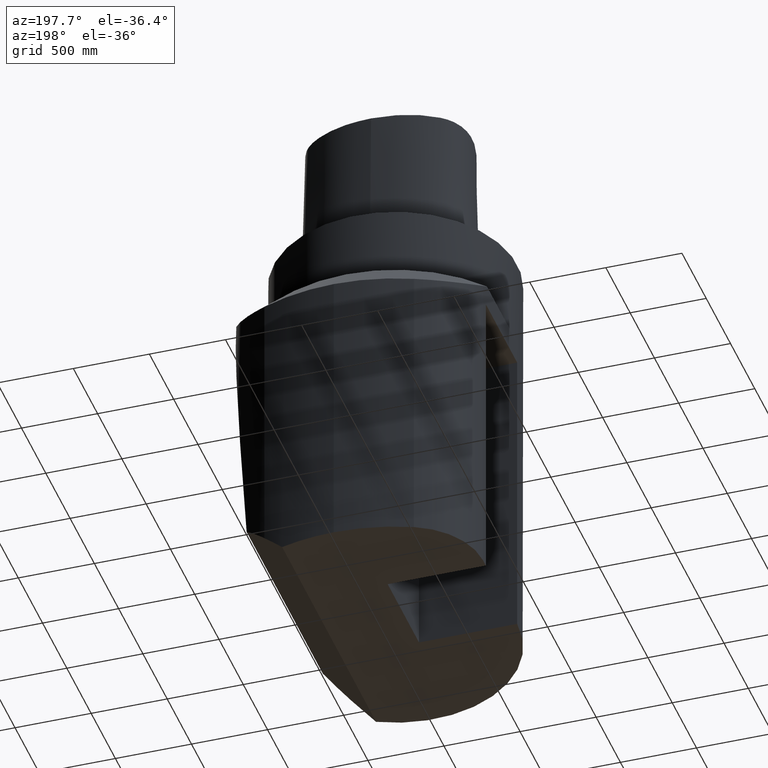
[diagram: clean part render]
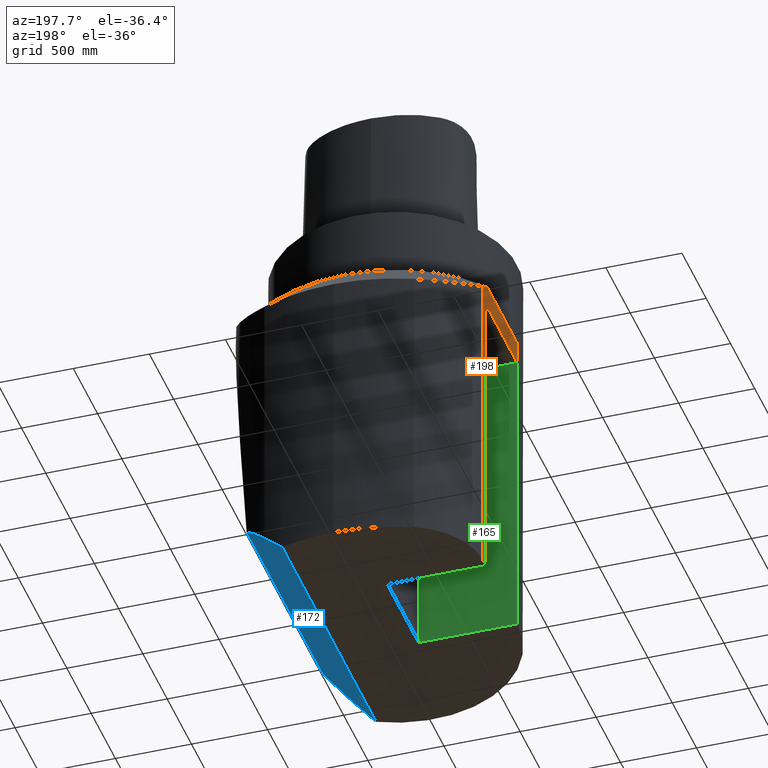
[diagram: same view with three faces highlighted in distinct colors, each labeled with its STEP entity id]
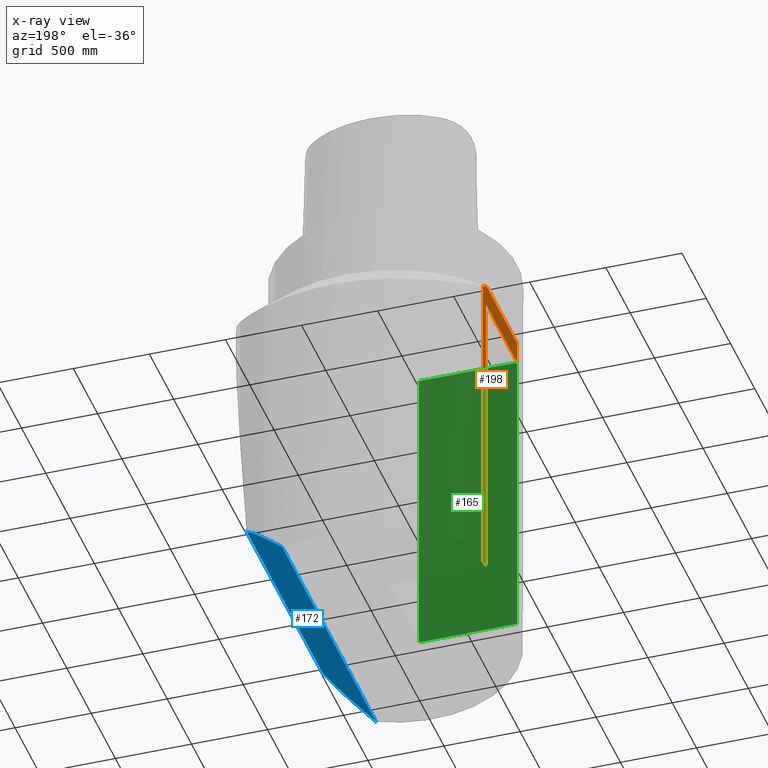
[diagram: x-ray of the same camera — body ghosted, the three highlighted faces saturated]
A machine part, auxiliary view with three faces highlighted in distinct colors.
The next image is the same camera in x-ray (body ghosted, the three faces saturated) — at least one of them is partly hidden behind the body in this view.
Their STEP definitions:

[orange] entity #198 — the highlighted planar face has unit normal (1, 0, 0).
#99=EDGE_CURVE('Unnamed[1]',#276,#277,#278,.T.);
#123=EDGE_CURVE('Unnamed[1]',#273,#316,#317,.T.);
#138=EDGE_CURVE('Unnamed[1]',#277,#338,#339,.T.);
#151=EDGE_CURVE('Unnamed[1]',#276,#280,#355,.T.);
#198=ADVANCED_FACE('Unnamed[1]',(#416),#417,.F.);
#218=EDGE_CURVE('Unnamed[1]',#338,#403,#441,.T.);
#223=EDGE_CURVE('Unnamed[1]',#280,#273,#447,.T.);
#231=EDGE_CURVE('Unnamed[1]',#403,#316,#455,.T.);
#273=VERTEX_POINT('',#492);
#276=VERTEX_POINT('',#497);
#277=VERTEX_POINT('',#498);
#278=LINE('',#499,#500);
#280=VERTEX_POINT('',#503);
#316=VERTEX_POINT('',#566);
#317=LINE('',#567,#568);
#338=VERTEX_POINT('',#599);
#339=LINE('',#600,#601);
#355=LINE('',#672,#673);
#403=VERTEX_POINT('',#767);
#416=FACE_OUTER_BOUND('',#851,.T.);
#417=PLANE('',#852);
#441=(B_SPLINE_CURVE(2,(#889,#890,#891),.UNSPECIFIED.,.F.,.F.)B_SPLINE_CURVE_WITH_KNOTS((3,3),(0.0,17.3552936339432),.UNSPECIFIED.)RATIONAL_B_SPLINE_CURVE((1.0,1.01264270198957,1.0))BOUNDED_CURVE()REPRESENTATION_ITEM('')GEOMETRIC_REPRESENTATION_ITEM()CURVE());
#447=LINE('',#976,#977);
#455=LINE('',#1000,#1001);
#492=CARTESIAN_POINT('',(-31.5,-5.28939329335578E-014,-29.9999999999993));
#497=CARTESIAN_POINT('',(-31.5000000000001,25.3999999999999,-109.999999999992));
#498=CARTESIAN_POINT('',(-31.5000000000001,27.710094358173,-109.999999999992));
#499=CARTESIAN_POINT('',(-31.5,6.92752358954313,-109.999999999992));
#500=VECTOR('',#1061,1.0);
#503=CARTESIAN_POINT('',(-31.5000000000001,25.4,-29.9999999999993));
#566=CARTESIAN_POINT('',(-31.5,3.08097706887413E-014,-24.0));
#567=CARTESIAN_POINT('',(-31.5,1.85633026972678E-014,-224.0));
#568=VECTOR('',#1101,1.0);
#599=CARTESIAN_POINT('',(-31.5000000000001,27.710094358173,-25.9535377452093));
#600=CARTESIAN_POINT('',(-31.5000000000001,27.710094358173,-224.0));
#601=VECTOR('',#1119,1.0);
#672=CARTESIAN_POINT('',(-31.5000000000001,25.3999999999999,-224.0));
#673=VECTOR('',#1130,1.0);
#767=CARTESIAN_POINT('',(-31.5000000000001,24.6525860712452,-24.0));
#851=EDGE_LOOP('',(#1208,#1209,#1210,#1211,#1212,#1213,#1214));
#852=AXIS2_PLACEMENT_3D('',#1215,#1216,#1217);
#889=CARTESIAN_POINT('',(-31.5000000000002,38.8297566307085,-33.9999999999993));
#890=CARTESIAN_POINT('',(-31.5000000000001,30.9535507643402,-27.8833768607101));
#891=CARTESIAN_POINT('',(-31.5000000000001,24.6525860712451,-24.0));
#976=CARTESIAN_POINT('',(-31.5000000000001,19.6275235895432,-29.9999999999993));
#977=VECTOR('',#1256,1.0);
#1000=CARTESIAN_POINT('',(-31.5,6.92752358954311,-24.0));
#1001=VECTOR('',#1259,1.0);
#1061=DIRECTION('',(-3.91902584538168E-015,1.0,-6.12323399511927E-017));
#1101=DIRECTION('',(-1.22464679914735E-016,6.12323399573677E-017,1.0));
#1119=DIRECTION('',(-1.22464679914735E-016,6.12323399573677E-017,1.0));
#1130=DIRECTION('',(-1.22464679914735E-016,6.12323399573677E-017,1.0));
#1208=ORIENTED_EDGE('',*,*,#223,.T.);
#1209=ORIENTED_EDGE('',*,*,#123,.T.);
#1210=ORIENTED_EDGE('',*,*,#231,.F.);
#1211=ORIENTED_EDGE('',*,*,#218,.F.);
#1212=ORIENTED_EDGE('',*,*,#138,.F.);
#1213=ORIENTED_EDGE('',*,*,#99,.F.);
#1214=ORIENTED_EDGE('',*,*,#151,.T.);
#1215=CARTESIAN_POINT('',(-31.5,13.8550471790865,-224.0));
#1216=DIRECTION('',(1.0,3.91902584538168E-015,1.22464679914735E-016));
#1217=DIRECTION('',(-3.91902584538168E-015,1.0,-6.12323399573682E-017));
#1256=DIRECTION('',(3.91902584538168E-015,-1.0,6.12323399573682E-017));
#1259=DIRECTION('',(3.91902584538168E-015,-1.0,6.12323399573682E-017));

[blue] entity #172 — the highlighted planar face has unit normal (-0.7071, 0, 0.7071).
#115=EDGE_CURVE('Unnamed[1]',#304,#305,#306,.T.);
#136=EDGE_CURVE('Unnamed[1]',#305,#335,#336,.T.);
#169=EDGE_CURVE('Unnamed[1]',#265,#379,#380,.T.);
#172=ADVANCED_FACE('Unnamed[1]',(#383),#384,.F.);
#216=EDGE_CURVE('Unnamed[1]',#335,#265,#439,.T.);
#247=EDGE_CURVE('Unnamed[1]',#379,#304,#473,.T.);
#265=VERTEX_POINT('',#482);
#304=VERTEX_POINT('',#551);
#305=VERTEX_POINT('',#552);
#306=ELLIPSE('',#553,28.284271247462,20.0);
#335=VERTEX_POINT('',#595);
#336=ELLIPSE('',#596,70.710678118655,50.0);
#379=VERTEX_POINT('',#722);
#380=ELLIPSE('',#723,44.5477272147526,31.5);
#383=FACE_OUTER_BOUND('',#727,.T.);
#384=PLANE('',#728);
#439=LINE('',#884,#885);
#473=LINE('',#1043,#1044);
#482=CARTESIAN_POINT('',(13.9999999999624,-28.2179021190636,-110.000000000098));
#551=CARTESIAN_POINT('',(24.9324394536427,42.5243889511943,-99.0675605464172));
#552=CARTESIAN_POINT('',(19.169546318746,46.1775147707604,-104.830453681314));
#553=AXIS2_PLACEMENT_3D('',#1081,#1082,#1083);
#595=CARTESIAN_POINT('',(13.9999999999624,47.9987399413341,-110.000000000098));
#596=AXIS2_PLACEMENT_3D('',#1116,#1117,#1118);
#722=CARTESIAN_POINT('',(24.9324394536427,-19.25158338658,-99.0675605464172));
#723=AXIS2_PLACEMENT_3D('',#1165,#1166,#1167);
#727=EDGE_LOOP('',(#1169,#1170,#1171,#1172,#1173));
#728=AXIS2_PLACEMENT_3D('',#1174,#1175,#1176);
#884=CARTESIAN_POINT('',(14.0,-9.30731567352356E-015,-110.00000000006));
#885=VECTOR('',#1250,1.0);
#1043=CARTESIAN_POINT('',(24.9324394536427,-1.06461533719011E-014,-99.0675605464172));
#1044=VECTOR('',#1280,1.0);
#1081=CARTESIAN_POINT('',(11.4999999999998,27.7065088624562,-112.50000000006));
#1082=DIRECTION('',(-0.70710678118655,1.73191211247099E-016,0.707106781186545));
#1083=DIRECTION('',(-0.707106781186545,1.73191211247098E-016,-0.70710678118655));
#1116=CARTESIAN_POINT('',(-0.00431947811943235,2.0829428259192E-014,-124.00431947818));
#1117=DIRECTION('',(-0.70710678118655,1.73191211247099E-016,0.707106781186545));
#1118=DIRECTION('',(-0.707106781186545,1.73191211247098E-016,-0.70710678118655));
#1165=CARTESIAN_POINT('',(1.51856203094345E-014,-7.59281015471727E-015,-124.00000000006));
#1166=DIRECTION('',(-0.70710678118655,1.73191211247099E-016,0.707106781186545));
#1167=DIRECTION('',(0.707106781186545,-8.65956056235487E-017,0.70710678118655));
#1169=ORIENTED_EDGE('',*,*,#115,.F.);
#1170=ORIENTED_EDGE('',*,*,#247,.F.);
#1171=ORIENTED_EDGE('',*,*,#169,.F.);
#1172=ORIENTED_EDGE('',*,*,#216,.F.);
#1173=ORIENTED_EDGE('',*,*,#136,.F.);
#1174=CARTESIAN_POINT('',(18.0118047415273,-9.79862005707511E-015,-105.988195258533));
#1175=DIRECTION('',(-0.70710678118655,1.73191211247099E-016,0.707106781186545));
#1176=DIRECTION('',(0.707106781186545,-8.65956056235487E-017,0.70710678118655));
#1250=DIRECTION('',(-1.83697019872103E-016,-1.0,6.12323399573677E-017));
#1280=DIRECTION('',(1.83697019872103E-016,1.0,-6.12323399573677E-017));

[green] entity #165 — the highlighted planar face has unit normal (0, -1, 0).
#97=EDGE_CURVE('Unnamed[1]',#266,#273,#274,.T.);
#130=EDGE_CURVE('Unnamed[1]',#300,#327,#328,.T.);
#165=ADVANCED_FACE('Unnamed[1]',(#373),#374,.F.);
#179=EDGE_CURVE('Unnamed[1]',#266,#300,#393,.T.);
#235=EDGE_CURVE('Unnamed[1]',#327,#273,#459,.T.);
#266=VERTEX_POINT('',#483);
#273=VERTEX_POINT('',#492);
#274=LINE('',#493,#494);
#300=VERTEX_POINT('',#545);
#327=VERTEX_POINT('',#581);
#328=LINE('',#582,#583);
#373=FACE_OUTER_BOUND('',#697,.T.);
#374=PLANE('',#698);
#393=LINE('',#753,#754);
#459=LINE('',#1007,#1008);
#483=CARTESIAN_POINT('',(-31.5,2.55437894524082E-014,-109.999999999992));
#492=CARTESIAN_POINT('',(-31.5,-5.28939329335578E-014,-29.9999999999993));
#493=CARTESIAN_POINT('',(-31.5,1.85633026972678E-014,-224.0));
#494=VECTOR('',#1060,1.0);
#545=CARTESIAN_POINT('',(-6.10000000000846,-3.40367150044949E-014,-110.00000000003));
#581=CARTESIAN_POINT('',(-6.10000000000847,-2.91381278079036E-014,-29.9999999999993));
#582=CARTESIAN_POINT('',(-6.10000000000844,-4.1017201759633E-014,-224.0));
#583=VECTOR('',#1113,1.0);
#697=EDGE_LOOP('',(#1158,#1159,#1160,#1161));
#698=AXIS2_PLACEMENT_3D('',#1162,#1163,#1164);
#753=CARTESIAN_POINT('',(3.10000000008387,-2.54322501557444E-014,-110.000000000044));
#754=VECTOR('',#1185,1.0);
#1007=CARTESIAN_POINT('',(-31.5,-5.28939329335578E-014,-29.9999999999993));
#1008=VECTOR('',#1263,1.0);
#1060=DIRECTION('',(-1.22464679914735E-016,6.12323399573677E-017,1.0));
#1113=DIRECTION('',(-1.22464679914735E-016,6.12323399573677E-017,1.0));
#1158=ORIENTED_EDGE('',*,*,#179,.F.);
#1159=ORIENTED_EDGE('',*,*,#97,.T.);
#1160=ORIENTED_EDGE('',*,*,#235,.F.);
#1161=ORIENTED_EDGE('',*,*,#130,.F.);
#1162=CARTESIAN_POINT('',(-18.8000000000042,-5.28951043224601E-014,-224.0));
#1163=DIRECTION('',(9.35267918333152E-016,-1.0,6.12323399573678E-017));
#1164=DIRECTION('',(1.0,9.35267918333152E-016,1.22464679914735E-016));
#1185=DIRECTION('',(1.0,9.3526791833306E-016,-1.50509126675426E-012));
#1263=DIRECTION('',(-1.0,-9.35267918333152E-016,-1.22464679914735E-016));